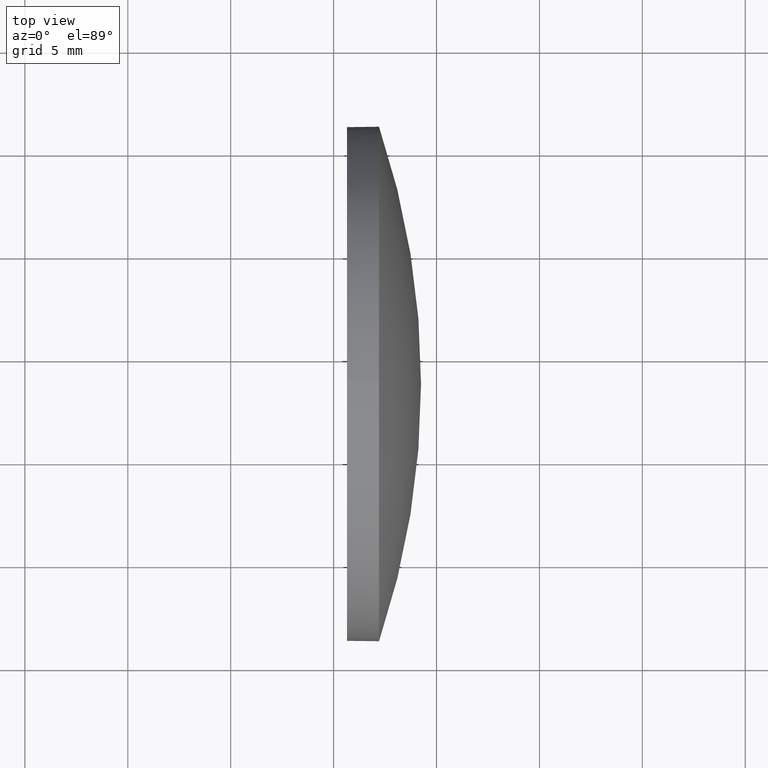
[diagram: clean part render]
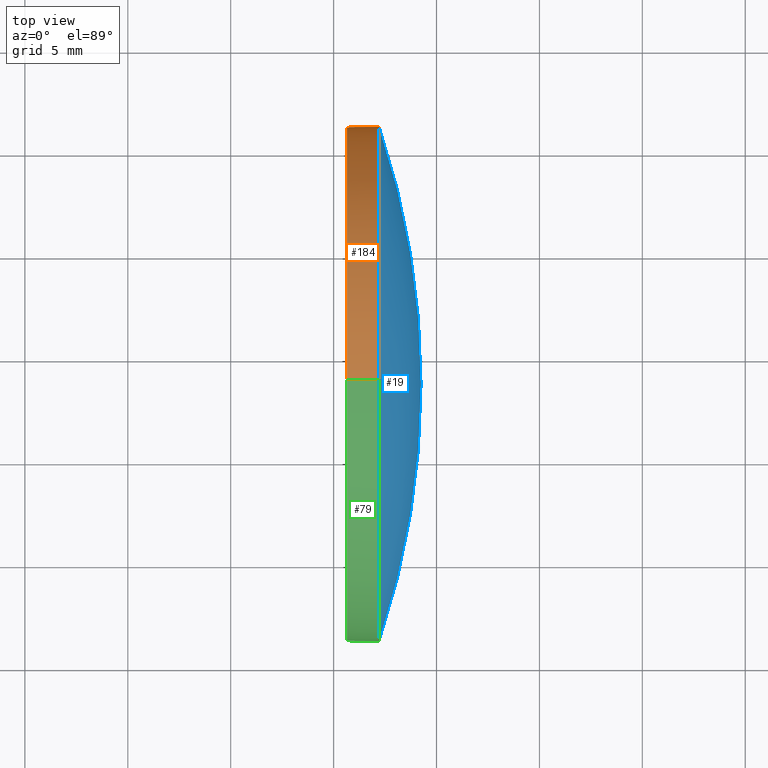
[diagram: same view with three faces highlighted in distinct colors, each labeled with its STEP entity id]
A machine part, top view with three faces highlighted in distinct colors.
Their STEP definitions:

[orange] entity #184 — the highlighted cylindrical surface (partial cylindrical patch) has radius 12.5 mm, axis along (-1, -0, -0).
#1 = VECTOR ( 'NONE', #125, 1000.000000000000000 ) ;
#4 = CARTESIAN_POINT ( 'NONE',  ( 702.2082137822092100, 248.6989515339254200, 12.49999999999998400 ) ) ;
#5 = EDGE_CURVE ( 'NONE', #52, #74, #49, .T. ) ;
#6 = EDGE_LOOP ( 'NONE', ( #66, #115, #128, #35, #126 ) ) ;
#15 = VERTEX_POINT ( 'NONE', #80 ) ;
#16 = EDGE_CURVE ( 'NONE', #15, #52, #83, .T. ) ;
#21 = VECTOR ( 'NONE', #106, 1000.000000000000000 ) ;
#27 = DIRECTION ( 'NONE',  ( 0.0000000000000000000, 0.0000000000000000000, 1.000000000000000000 ) ) ;
#30 = CARTESIAN_POINT ( 'NONE',  ( 702.2082137822092100, 248.6989515339254200, -12.49999999999998400 ) ) ;
#35 = ORIENTED_EDGE ( 'NONE', *, *, #114, .F. ) ;
#40 = FACE_OUTER_BOUND ( 'NONE', #6, .T. ) ;
#43 = CYLINDRICAL_SURFACE ( 'NONE', #64, 12.49999999999998400 ) ;
#49 = LINE ( 'NONE', #81, #21 ) ;
#52 = VERTEX_POINT ( 'NONE', #30 ) ;
#61 = CARTESIAN_POINT ( 'NONE',  ( 702.2082137822092100, 248.6989515339254200, 0.0000000000000000000 ) ) ;
#64 = AXIS2_PLACEMENT_3D ( 'NONE', #76, #87, #142 ) ;
#66 = ORIENTED_EDGE ( 'NONE', *, *, #16, .T. ) ;
#74 = VERTEX_POINT ( 'NONE', #163 ) ;
#76 = CARTESIAN_POINT ( 'NONE',  ( 677.0000888146496400, 248.6989515339254200, 0.0000000000000000000 ) ) ;
#80 = CARTESIAN_POINT ( 'NONE',  ( 702.2082137822092100, 261.1989515339254800, 1.530808498934184600E-015 ) ) ;
#81 = CARTESIAN_POINT ( 'NONE',  ( 677.0000888146496400, 248.6989515339254200, -12.49999999999998400 ) ) ;
#83 = CIRCLE ( 'NONE', #148, 12.49999999999998400 ) ;
#86 = VERTEX_POINT ( 'NONE', #4 ) ;
#87 = DIRECTION ( 'NONE',  ( -1.000000000000000000, -0.0000000000000000000, -0.0000000000000000000 ) ) ;
#98 = LINE ( 'NONE', #153, #1 ) ;
#106 = DIRECTION ( 'NONE',  ( -1.000000000000000000, -0.0000000000000000000, -0.0000000000000000000 ) ) ;
#112 = CIRCLE ( 'NONE', #175, 12.49999999999998400 ) ;
#114 = EDGE_CURVE ( 'NONE', #86, #152, #98, .T. ) ;
#115 = ORIENTED_EDGE ( 'NONE', *, *, #5, .T. ) ;
#125 = DIRECTION ( 'NONE',  ( -1.000000000000000000, -0.0000000000000000000, -0.0000000000000000000 ) ) ;
#126 = ORIENTED_EDGE ( 'NONE', *, *, #156, .T. ) ;
#128 = ORIENTED_EDGE ( 'NONE', *, *, #136, .F. ) ;
#136 = EDGE_CURVE ( 'NONE', #152, #74, #147, .T. ) ;
#140 = DIRECTION ( 'NONE',  ( -1.000000000000000000, -0.0000000000000000000, -0.0000000000000000000 ) ) ;
#142 = DIRECTION ( 'NONE',  ( 0.0000000000000000000, 0.0000000000000000000, 1.000000000000000000 ) ) ;
#147 = CIRCLE ( 'NONE', #165, 12.49999999999998400 ) ;
#148 = AXIS2_PLACEMENT_3D ( 'NONE', #164, #172, #185 ) ;
#152 = VERTEX_POINT ( 'NONE', #157 ) ;
#153 = CARTESIAN_POINT ( 'NONE',  ( 677.0000888146496400, 248.6989515339254200, 12.49999999999998400 ) ) ;
#154 = DIRECTION ( 'NONE',  ( 0.0000000000000000000, 0.0000000000000000000, 1.000000000000000000 ) ) ;
#156 = EDGE_CURVE ( 'NONE', #86, #15, #112, .T. ) ;
#157 = CARTESIAN_POINT ( 'NONE',  ( 700.6482137822092700, 248.6989515339254200, 12.49999999999998400 ) ) ;
#163 = CARTESIAN_POINT ( 'NONE',  ( 700.6482137822092700, 248.6989515339254200, -12.49999999999998400 ) ) ;
#164 = CARTESIAN_POINT ( 'NONE',  ( 702.2082137822092100, 248.6989515339254200, 0.0000000000000000000 ) ) ;
#165 = AXIS2_PLACEMENT_3D ( 'NONE', #182, #140, #154 ) ;
#168 = DIRECTION ( 'NONE',  ( -1.000000000000000000, -0.0000000000000000000, -0.0000000000000000000 ) ) ;
#172 = DIRECTION ( 'NONE',  ( -1.000000000000000000, -0.0000000000000000000, -0.0000000000000000000 ) ) ;
#175 = AXIS2_PLACEMENT_3D ( 'NONE', #61, #168, #27 ) ;
#182 = CARTESIAN_POINT ( 'NONE',  ( 700.6482137822092700, 248.6989515339254200, 0.0000000000000000000 ) ) ;
#184 = ADVANCED_FACE ( 'NONE', ( #40 ), #43, .T. ) ;
#185 = DIRECTION ( 'NONE',  ( 0.0000000000000000000, 0.0000000000000000000, 1.000000000000000000 ) ) ;

[blue] entity #19 — the highlighted spherical surface has radius 39.3166 mm.
#4 = CARTESIAN_POINT ( 'NONE',  ( 702.2082137822092100, 248.6989515339254200, 12.49999999999998400 ) ) ;
#14 = DIRECTION ( 'NONE',  ( -1.000000000000000000, 0.0000000000000000000, 0.0000000000000000000 ) ) ;
#15 = VERTEX_POINT ( 'NONE', #80 ) ;
#19 = ADVANCED_FACE ( 'NONE', ( #60 ), #108, .T. ) ;
#23 = CIRCLE ( 'NONE', #31, 39.31656862745097700 ) ;
#25 = AXIS2_PLACEMENT_3D ( 'NONE', #101, #139, #14 ) ;
#27 = DIRECTION ( 'NONE',  ( 0.0000000000000000000, 0.0000000000000000000, 1.000000000000000000 ) ) ;
#31 = AXIS2_PLACEMENT_3D ( 'NONE', #91, #169, #155 ) ;
#46 = CARTESIAN_POINT ( 'NONE',  ( 702.2082137822092100, 236.1989515339254800, 0.0000000000000000000 ) ) ;
#47 = CARTESIAN_POINT ( 'NONE',  ( 702.2082137822092100, 248.6989515339254200, 0.0000000000000000000 ) ) ;
#60 = FACE_OUTER_BOUND ( 'NONE', #144, .T. ) ;
#61 = CARTESIAN_POINT ( 'NONE',  ( 702.2082137822092100, 248.6989515339254200, 0.0000000000000000000 ) ) ;
#65 = CIRCLE ( 'NONE', #25, 39.31656862745103400 ) ;
#68 = AXIS2_PLACEMENT_3D ( 'NONE', #47, #117, #97 ) ;
#70 = DIRECTION ( 'NONE',  ( 0.0000000000000000000, -1.000000000000000000, 0.0000000000000000000 ) ) ;
#71 = CARTESIAN_POINT ( 'NONE',  ( 704.2482137822092900, 248.6989515339255100, 0.0000000000000000000 ) ) ;
#80 = CARTESIAN_POINT ( 'NONE',  ( 702.2082137822092100, 261.1989515339254800, 1.530808498934184600E-015 ) ) ;
#86 = VERTEX_POINT ( 'NONE', #4 ) ;
#91 = CARTESIAN_POINT ( 'NONE',  ( 664.9316451547582600, 248.6989515339255100, 0.0000000000000000000 ) ) ;
#93 = DIRECTION ( 'NONE',  ( 0.0000000000000000000, 0.0000000000000000000, 1.000000000000000000 ) ) ;
#94 = ORIENTED_EDGE ( 'NONE', *, *, #156, .F. ) ;
#97 = DIRECTION ( 'NONE',  ( 0.0000000000000000000, 0.0000000000000000000, 1.000000000000000000 ) ) ;
#99 = ORIENTED_EDGE ( 'NONE', *, *, #174, .T. ) ;
#101 = CARTESIAN_POINT ( 'NONE',  ( 664.9316451547582600, 248.6989515339255100, 0.0000000000000000000 ) ) ;
#107 = CARTESIAN_POINT ( 'NONE',  ( 664.9316451547582600, 248.6989515339255100, 0.0000000000000000000 ) ) ;
#108 = SPHERICAL_SURFACE ( 'NONE', #146, 39.31656862745099100 ) ;
#112 = CIRCLE ( 'NONE', #175, 12.49999999999998400 ) ;
#117 = DIRECTION ( 'NONE',  ( -1.000000000000000000, -0.0000000000000000000, -0.0000000000000000000 ) ) ;
#119 = ORIENTED_EDGE ( 'NONE', *, *, #131, .F. ) ;
#122 = VERTEX_POINT ( 'NONE', #71 ) ;
#131 = EDGE_CURVE ( 'NONE', #134, #86, #150, .T. ) ;
#134 = VERTEX_POINT ( 'NONE', #46 ) ;
#139 = DIRECTION ( 'NONE',  ( 0.0000000000000000000, 0.0000000000000000000, -1.000000000000000000 ) ) ;
#144 = EDGE_LOOP ( 'NONE', ( #178, #99, #94, #119 ) ) ;
#146 = AXIS2_PLACEMENT_3D ( 'NONE', #107, #93, #70 ) ;
#150 = CIRCLE ( 'NONE', #68, 12.49999999999998400 ) ;
#155 = DIRECTION ( 'NONE',  ( 0.0000000000000000000, -1.000000000000000000, -1.224646799147353700E-016 ) ) ;
#156 = EDGE_CURVE ( 'NONE', #86, #15, #112, .T. ) ;
#167 = EDGE_CURVE ( 'NONE', #122, #134, #65, .T. ) ;
#168 = DIRECTION ( 'NONE',  ( -1.000000000000000000, -0.0000000000000000000, -0.0000000000000000000 ) ) ;
#169 = DIRECTION ( 'NONE',  ( 0.0000000000000000000, -1.224646799147353200E-016, 1.000000000000000000 ) ) ;
#174 = EDGE_CURVE ( 'NONE', #122, #15, #23, .T. ) ;
#175 = AXIS2_PLACEMENT_3D ( 'NONE', #61, #168, #27 ) ;
#178 = ORIENTED_EDGE ( 'NONE', *, *, #167, .F. ) ;

[green] entity #79 — the highlighted cylindrical surface (partial cylindrical patch) has radius 12.5 mm, axis along (-1, -0, -0).
#1 = VECTOR ( 'NONE', #125, 1000.000000000000000 ) ;
#4 = CARTESIAN_POINT ( 'NONE',  ( 702.2082137822092100, 248.6989515339254200, 12.49999999999998400 ) ) ;
#5 = EDGE_CURVE ( 'NONE', #52, #74, #49, .T. ) ;
#9 = AXIS2_PLACEMENT_3D ( 'NONE', #105, #33, #124 ) ;
#21 = VECTOR ( 'NONE', #106, 1000.000000000000000 ) ;
#22 = DIRECTION ( 'NONE',  ( -1.000000000000000000, -0.0000000000000000000, -0.0000000000000000000 ) ) ;
#30 = CARTESIAN_POINT ( 'NONE',  ( 702.2082137822092100, 248.6989515339254200, -12.49999999999998400 ) ) ;
#33 = DIRECTION ( 'NONE',  ( -1.000000000000000000, -0.0000000000000000000, -0.0000000000000000000 ) ) ;
#34 = CIRCLE ( 'NONE', #38, 12.49999999999998400 ) ;
#36 = DIRECTION ( 'NONE',  ( 0.0000000000000000000, 0.0000000000000000000, 1.000000000000000000 ) ) ;
#38 = AXIS2_PLACEMENT_3D ( 'NONE', #111, #22, #75 ) ;
#46 = CARTESIAN_POINT ( 'NONE',  ( 702.2082137822092100, 236.1989515339254800, 0.0000000000000000000 ) ) ;
#47 = CARTESIAN_POINT ( 'NONE',  ( 702.2082137822092100, 248.6989515339254200, 0.0000000000000000000 ) ) ;
#48 = CYLINDRICAL_SURFACE ( 'NONE', #9, 12.49999999999998400 ) ;
#49 = LINE ( 'NONE', #81, #21 ) ;
#52 = VERTEX_POINT ( 'NONE', #30 ) ;
#55 = FACE_OUTER_BOUND ( 'NONE', #57, .T. ) ;
#57 = EDGE_LOOP ( 'NONE', ( #159, #137, #59, #151, #176 ) ) ;
#59 = ORIENTED_EDGE ( 'NONE', *, *, #131, .T. ) ;
#68 = AXIS2_PLACEMENT_3D ( 'NONE', #47, #117, #97 ) ;
#73 = AXIS2_PLACEMENT_3D ( 'NONE', #110, #149, #36 ) ;
#74 = VERTEX_POINT ( 'NONE', #163 ) ;
#75 = DIRECTION ( 'NONE',  ( 0.0000000000000000000, 0.0000000000000000000, 1.000000000000000000 ) ) ;
#79 = ADVANCED_FACE ( 'NONE', ( #55 ), #48, .T. ) ;
#81 = CARTESIAN_POINT ( 'NONE',  ( 677.0000888146496400, 248.6989515339254200, -12.49999999999998400 ) ) ;
#86 = VERTEX_POINT ( 'NONE', #4 ) ;
#96 = EDGE_CURVE ( 'NONE', #74, #152, #158, .T. ) ;
#97 = DIRECTION ( 'NONE',  ( 0.0000000000000000000, 0.0000000000000000000, 1.000000000000000000 ) ) ;
#98 = LINE ( 'NONE', #153, #1 ) ;
#105 = CARTESIAN_POINT ( 'NONE',  ( 677.0000888146496400, 248.6989515339254200, 0.0000000000000000000 ) ) ;
#106 = DIRECTION ( 'NONE',  ( -1.000000000000000000, -0.0000000000000000000, -0.0000000000000000000 ) ) ;
#110 = CARTESIAN_POINT ( 'NONE',  ( 700.6482137822092700, 248.6989515339254200, 0.0000000000000000000 ) ) ;
#111 = CARTESIAN_POINT ( 'NONE',  ( 702.2082137822092100, 248.6989515339254200, 0.0000000000000000000 ) ) ;
#114 = EDGE_CURVE ( 'NONE', #86, #152, #98, .T. ) ;
#117 = DIRECTION ( 'NONE',  ( -1.000000000000000000, -0.0000000000000000000, -0.0000000000000000000 ) ) ;
#124 = DIRECTION ( 'NONE',  ( 0.0000000000000000000, 0.0000000000000000000, 1.000000000000000000 ) ) ;
#125 = DIRECTION ( 'NONE',  ( -1.000000000000000000, -0.0000000000000000000, -0.0000000000000000000 ) ) ;
#131 = EDGE_CURVE ( 'NONE', #134, #86, #150, .T. ) ;
#134 = VERTEX_POINT ( 'NONE', #46 ) ;
#137 = ORIENTED_EDGE ( 'NONE', *, *, #186, .T. ) ;
#149 = DIRECTION ( 'NONE',  ( -1.000000000000000000, -0.0000000000000000000, -0.0000000000000000000 ) ) ;
#150 = CIRCLE ( 'NONE', #68, 12.49999999999998400 ) ;
#151 = ORIENTED_EDGE ( 'NONE', *, *, #114, .T. ) ;
#152 = VERTEX_POINT ( 'NONE', #157 ) ;
#153 = CARTESIAN_POINT ( 'NONE',  ( 677.0000888146496400, 248.6989515339254200, 12.49999999999998400 ) ) ;
#157 = CARTESIAN_POINT ( 'NONE',  ( 700.6482137822092700, 248.6989515339254200, 12.49999999999998400 ) ) ;
#158 = CIRCLE ( 'NONE', #73, 12.49999999999998400 ) ;
#159 = ORIENTED_EDGE ( 'NONE', *, *, #5, .F. ) ;
#163 = CARTESIAN_POINT ( 'NONE',  ( 700.6482137822092700, 248.6989515339254200, -12.49999999999998400 ) ) ;
#176 = ORIENTED_EDGE ( 'NONE', *, *, #96, .F. ) ;
#186 = EDGE_CURVE ( 'NONE', #52, #134, #34, .T. ) ;